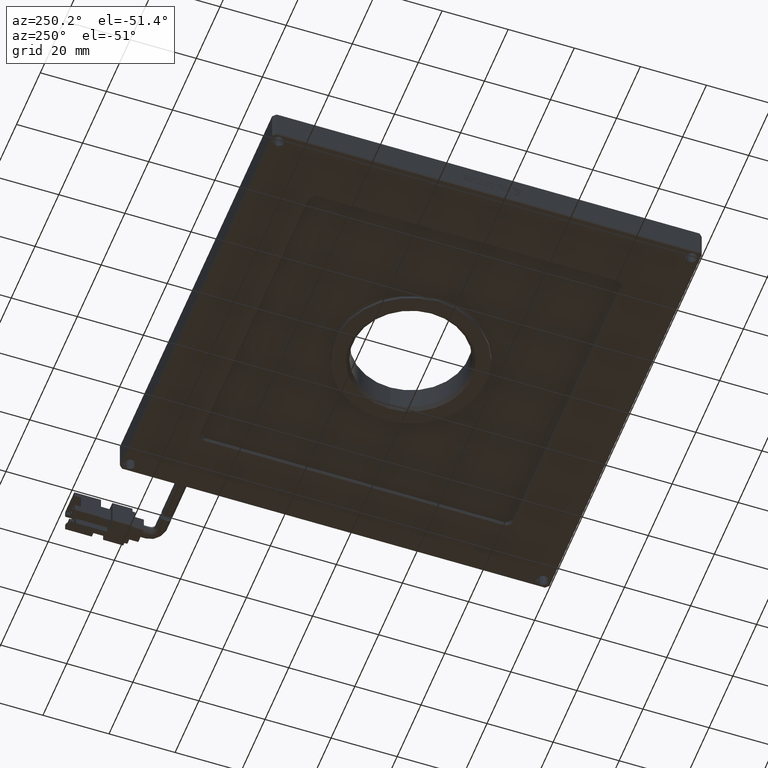
[diagram: clean part render]
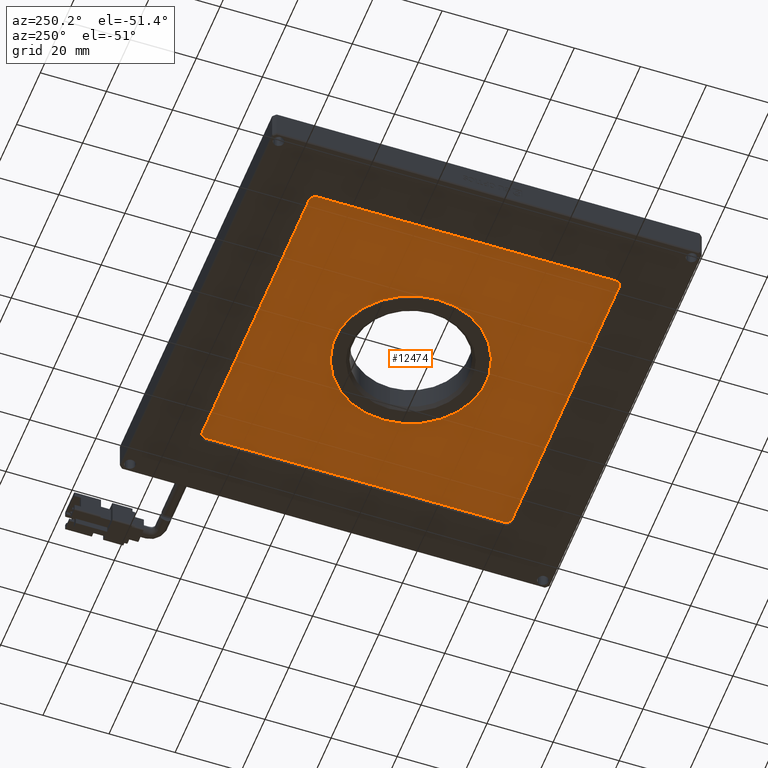
[diagram: same view with one face highlighted and labeled with its STEP entity id]
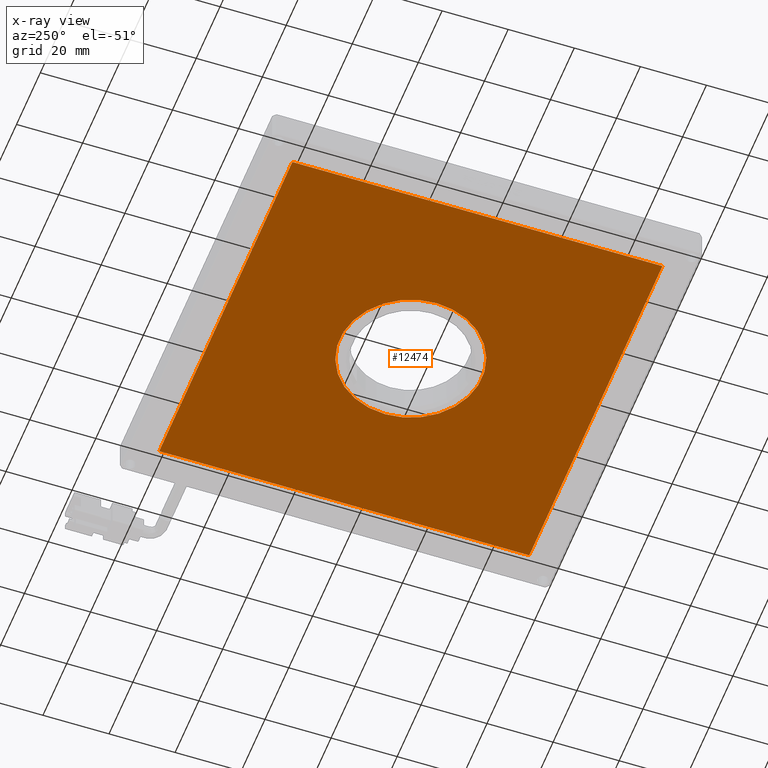
[diagram: x-ray of the same camera — body ghosted, the highlighted face saturated]
A machine part, auxiliary view. The second image highlights one B-rep face of the part: STEP entity #12474.
The next image is the same camera in x-ray: the body ghosted, the highlighted face saturated — about 0% of this face is hidden behind the body in this view.
In plain terms, the highlighted planar face has unit normal (0, 0, -1).
Its self-contained STEP definition (entity closure, byte-faithful):
#1035 = CARTESIAN_POINT ( 'NONE',  ( 47.62907407407411900, 24.05944444444444800, -2.000000000000000000 ) ) ;
#1173 = CARTESIAN_POINT ( 'NONE',  ( -29.87092592592589200, 80.05944444444445200, -2.000000000000000000 ) ) ;
#1256 = CARTESIAN_POINT ( 'NONE',  ( -29.87092592592589200, -31.94055555555555500, -2.000000000000000000 ) ) ;
#1542 = PLANE ( 'NONE',  #13657 ) ;
#1687 = CARTESIAN_POINT ( 'NONE',  ( 82.12907407407411100, -31.94055555555555500, -2.000000000000000000 ) ) ;
#1954 = VECTOR ( 'NONE', #19927, 1000.000000000000000 ) ;
#2624 = DIRECTION ( 'NONE',  ( -0.0000000000000000000, 1.000000000000000000, 0.0000000000000000000 ) ) ;
#2819 = CIRCLE ( 'NONE', #5164, 21.50000000000000000 ) ;
#3168 = LINE ( 'NONE', #19997, #1954 ) ;
#4006 = CARTESIAN_POINT ( 'NONE',  ( 4.629074074074115000, 24.05944444444444500, -2.000000000000000000 ) ) ;
#4697 = LINE ( 'NONE', #1173, #18874 ) ;
#5164 = AXIS2_PLACEMENT_3D ( 'NONE', #17536, #6805, #17742 ) ;
#5229 = DIRECTION ( 'NONE',  ( -0.0000000000000000000, -1.000000000000000000, 0.0000000000000000000 ) ) ;
#5268 = ORIENTED_EDGE ( 'NONE', *, *, #9955, .T. ) ;
#5657 = CARTESIAN_POINT ( 'NONE',  ( -29.87092592592589200, 80.05944444444445200, -2.000000000000000000 ) ) ;
#5838 = VERTEX_POINT ( 'NONE', #18780 ) ;
#6805 = DIRECTION ( 'NONE',  ( 0.0000000000000000000, 0.0000000000000000000, 1.000000000000000000 ) ) ;
#7442 = VECTOR ( 'NONE', #5229, 1000.000000000000000 ) ;
#7921 = EDGE_CURVE ( 'NONE', #15048, #19150, #14360, .T. ) ;
#7949 = DIRECTION ( 'NONE',  ( -1.000000000000000000, 0.0000000000000000000, -0.0000000000000000000 ) ) ;
#8668 = FACE_BOUND ( 'NONE', #12515, .T. ) ;
#8779 = ORIENTED_EDGE ( 'NONE', *, *, #7921, .T. ) ;
#9360 = DIRECTION ( 'NONE',  ( 0.0000000000000000000, 0.0000000000000000000, 1.000000000000000000 ) ) ;
#9679 = CARTESIAN_POINT ( 'NONE',  ( 82.12907407407411100, -31.94055555555555500, -2.000000000000000000 ) ) ;
#9792 = ORIENTED_EDGE ( 'NONE', *, *, #13409, .T. ) ;
#9955 = EDGE_CURVE ( 'NONE', #18962, #14447, #3168, .T. ) ;
#10581 = CARTESIAN_POINT ( 'NONE',  ( -29.87092592592589200, -31.94055555555555500, -2.000000000000000000 ) ) ;
#10840 = DIRECTION ( 'NONE',  ( 1.000000000000000000, 0.0000000000000000000, 0.0000000000000000000 ) ) ;
#12474 = ADVANCED_FACE ( 'NONE', ( #17001, #8668 ), #1542, .T. ) ;
#12496 = CARTESIAN_POINT ( 'NONE',  ( 26.12907407407411900, 24.05944444444444500, -2.000000000000000000 ) ) ;
#12515 = EDGE_LOOP ( 'NONE', ( #18301, #8779 ) ) ;
#13093 = LINE ( 'NONE', #10581, #17965 ) ;
#13167 = ORIENTED_EDGE ( 'NONE', *, *, #18166, .T. ) ;
#13409 = EDGE_CURVE ( 'NONE', #17628, #5838, #4697, .T. ) ;
#13657 = AXIS2_PLACEMENT_3D ( 'NONE', #17276, #18766, #7949 ) ;
#13829 = LINE ( 'NONE', #9679, #7442 ) ;
#14360 = CIRCLE ( 'NONE', #14547, 21.50000000000000000 ) ;
#14447 = VERTEX_POINT ( 'NONE', #1256 ) ;
#14547 = AXIS2_PLACEMENT_3D ( 'NONE', #12496, #9360, #15468 ) ;
#14656 = ORIENTED_EDGE ( 'NONE', *, *, #19963, .T. ) ;
#15048 = VERTEX_POINT ( 'NONE', #1035 ) ;
#15468 = DIRECTION ( 'NONE',  ( -1.000000000000000000, 0.0000000000000000000, 0.0000000000000000000 ) ) ;
#17001 = FACE_OUTER_BOUND ( 'NONE', #20202, .T. ) ;
#17276 = CARTESIAN_POINT ( 'NONE',  ( -29.87092592592589200, 80.05944444444445200, -2.000000000000000000 ) ) ;
#17536 = CARTESIAN_POINT ( 'NONE',  ( 26.12907407407411900, 24.05944444444444500, -2.000000000000000000 ) ) ;
#17628 = VERTEX_POINT ( 'NONE', #5657 ) ;
#17742 = DIRECTION ( 'NONE',  ( -1.000000000000000000, 0.0000000000000000000, 0.0000000000000000000 ) ) ;
#17843 = EDGE_CURVE ( 'NONE', #19150, #15048, #2819, .T. ) ;
#17965 = VECTOR ( 'NONE', #2624, 1000.000000000000000 ) ;
#18166 = EDGE_CURVE ( 'NONE', #14447, #17628, #13093, .T. ) ;
#18301 = ORIENTED_EDGE ( 'NONE', *, *, #17843, .T. ) ;
#18766 = DIRECTION ( 'NONE',  ( 0.0000000000000000000, 0.0000000000000000000, -1.000000000000000000 ) ) ;
#18780 = CARTESIAN_POINT ( 'NONE',  ( 82.12907407407411100, 80.05944444444445200, -2.000000000000000000 ) ) ;
#18874 = VECTOR ( 'NONE', #10840, 1000.000000000000000 ) ;
#18962 = VERTEX_POINT ( 'NONE', #1687 ) ;
#19150 = VERTEX_POINT ( 'NONE', #4006 ) ;
#19927 = DIRECTION ( 'NONE',  ( -1.000000000000000000, -0.0000000000000000000, 0.0000000000000000000 ) ) ;
#19963 = EDGE_CURVE ( 'NONE', #5838, #18962, #13829, .T. ) ;
#19997 = CARTESIAN_POINT ( 'NONE',  ( -29.87092592592589200, -31.94055555555555500, -2.000000000000000000 ) ) ;
#20202 = EDGE_LOOP ( 'NONE', ( #14656, #5268, #13167, #9792 ) ) ;